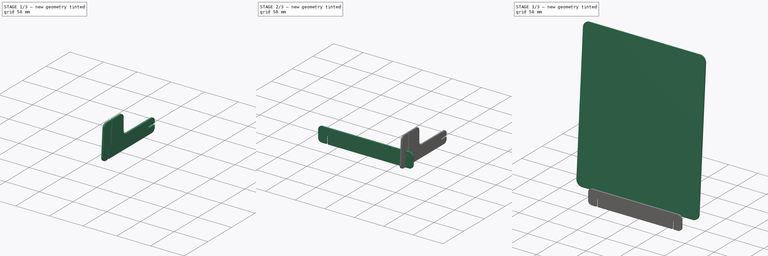
[diagram: build sequence overview — one tinted view per stage of 3, left to right]
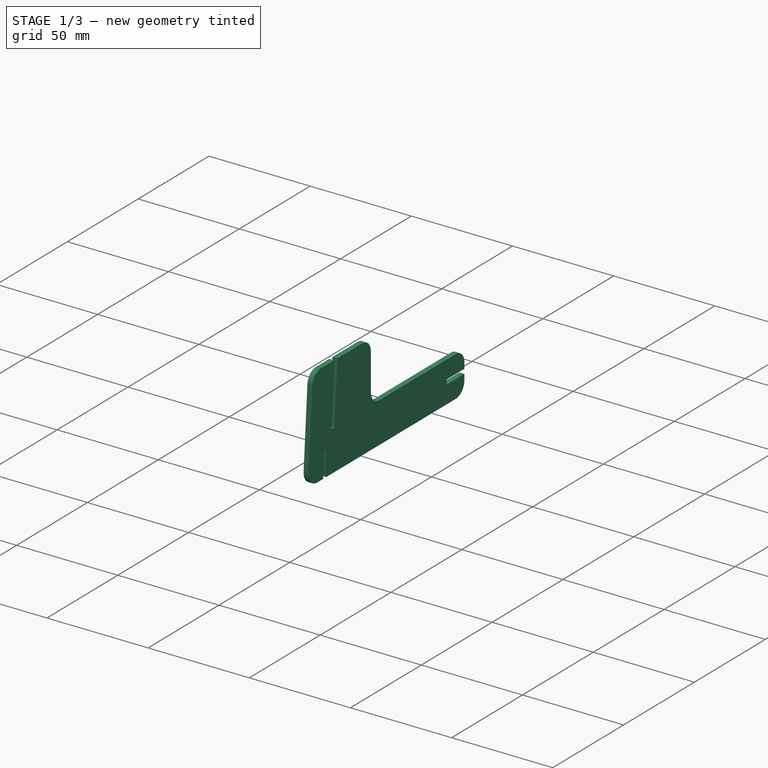
[diagram: stage 1 of 3 — iso view after this stage's code; geometry added in this stage tinted green]
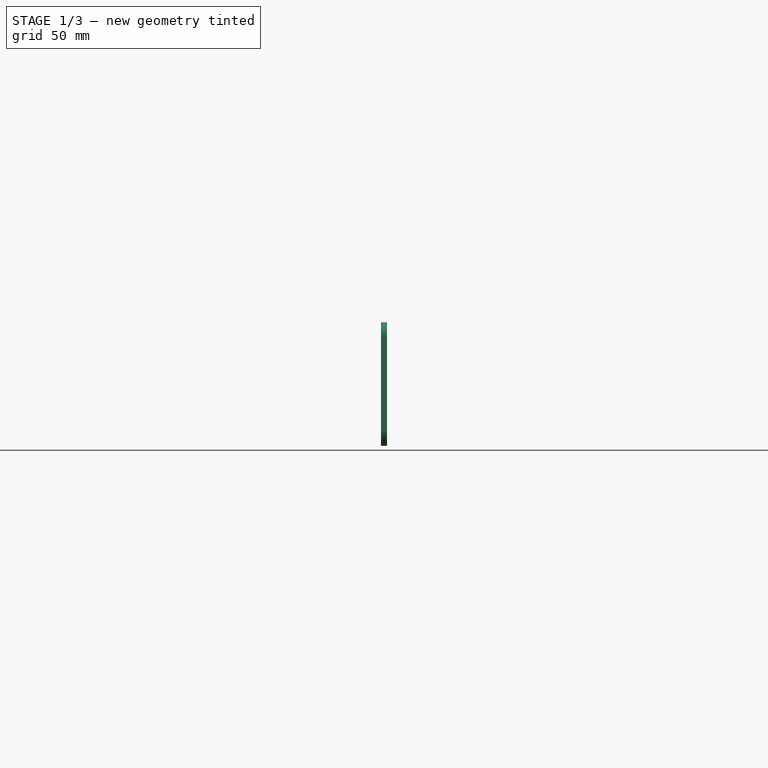
[diagram: stage 1 of 3 — front view after this stage's code; geometry added in this stage tinted green]
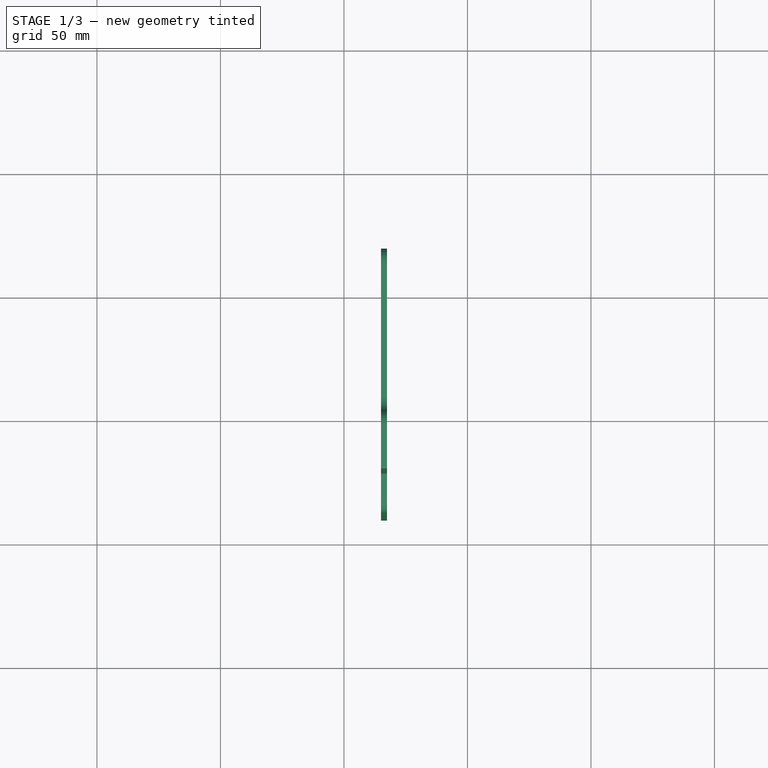
[diagram: stage 1 of 3 — top view after this stage's code; geometry added in this stage tinted green]
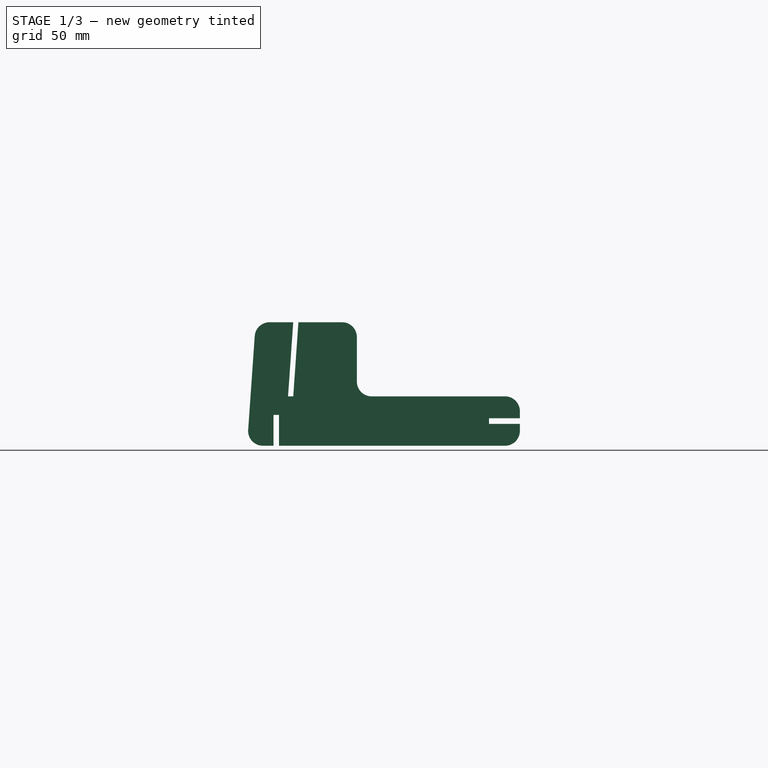
[diagram: stage 1 of 3 — right view after this stage's code; geometry added in this stage tinted green]
FCSTD DOCUMENT  (FreeCAD 1.0R39319 (Git))
Label: clock_face_v2
License: CERN Open Hardware Licence permissive
LicenseURL: https://cern-ohl.web.cern.ch/
objects: PartDesign::Body×5, Sketcher::SketchObject×4, PartDesign::Pad×3, PartDesign::SubShapeBinder×3, PartDesign::FeatureBase×2, PartDesign::Plane×1, App::VarSet×1
note: 30 computed .brp shape members not serialized (recipe doc carries the construction recipe); baked Part::Feature solids carry a one-line shape summary decoded from their .brp

FEATURE [PartDesign::Body] Body015
  AllowCompound = false
  Group = -> [Clone]
  Origin = -> Origin015
  Placement = pos=(0,49.75,19) rot=(1,0,0;1.5708rad)
  Tip = -> Clone
FEATURE [PartDesign::Pad] Pad010
  Direction = (1,0,0)
  Length = 2.45
  Length2 = 10
  Placement = pos=(0,0,0) rot=(1,1,1;2.0944rad)
  Profile = -> Sketch010
  ReferenceAxis = -> Sketch010 [N_Axis]
  Refine = true
  Suppressed = false
  Type = 0
  expr: Length = VarSet.veneer_thickness
FEATURE [PartDesign::Body] Body010
  AllowCompound = false
  Group = -> [Sketch010,Pad010]
  Origin = -> Origin010
  Tip = -> Pad010
FEATURE [PartDesign::FeatureBase] Clone003
  BaseFeature = -> Body010
  Suppressed = false
FEATURE [PartDesign::Body] Body011
  AllowCompound = false
  Group = -> [Clone003]
  Origin = -> Origin011
  Placement = pos=(-130,0,0) rot=(0,0,1;0rad)
  Tip = -> Clone003
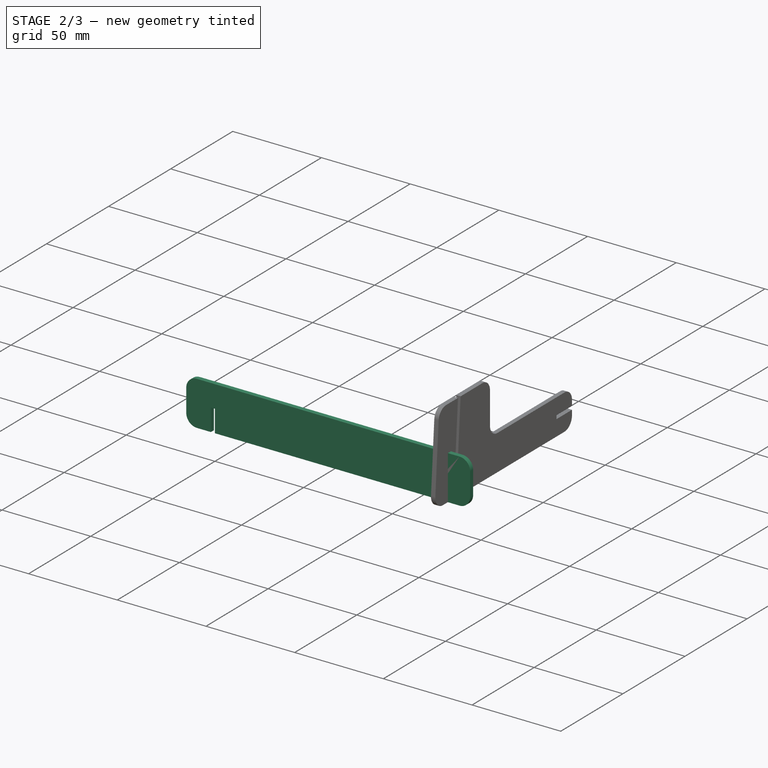
[diagram: stage 2 of 3 — iso view after this stage's code; geometry added in this stage tinted green]
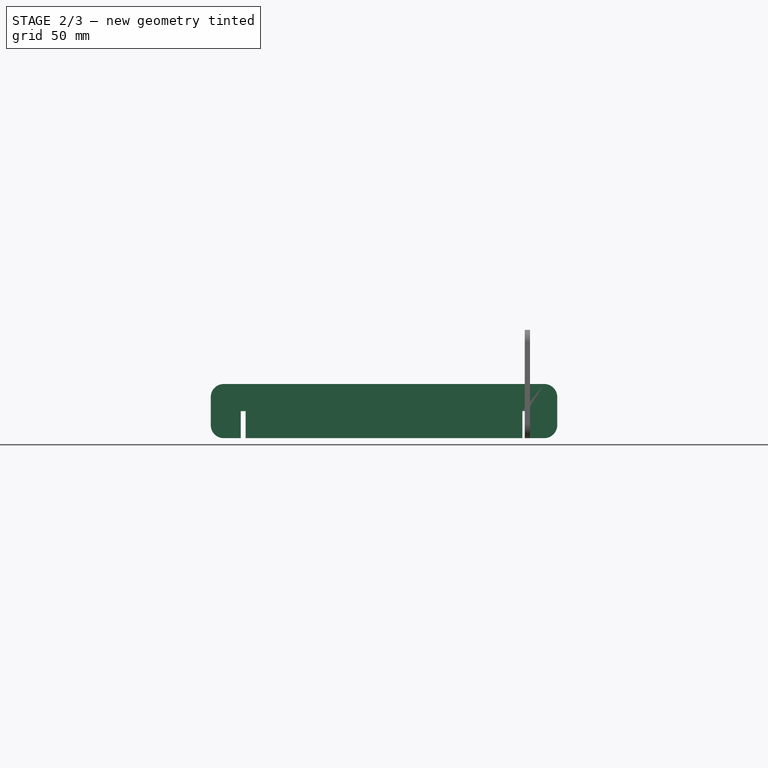
[diagram: stage 2 of 3 — front view after this stage's code; geometry added in this stage tinted green]
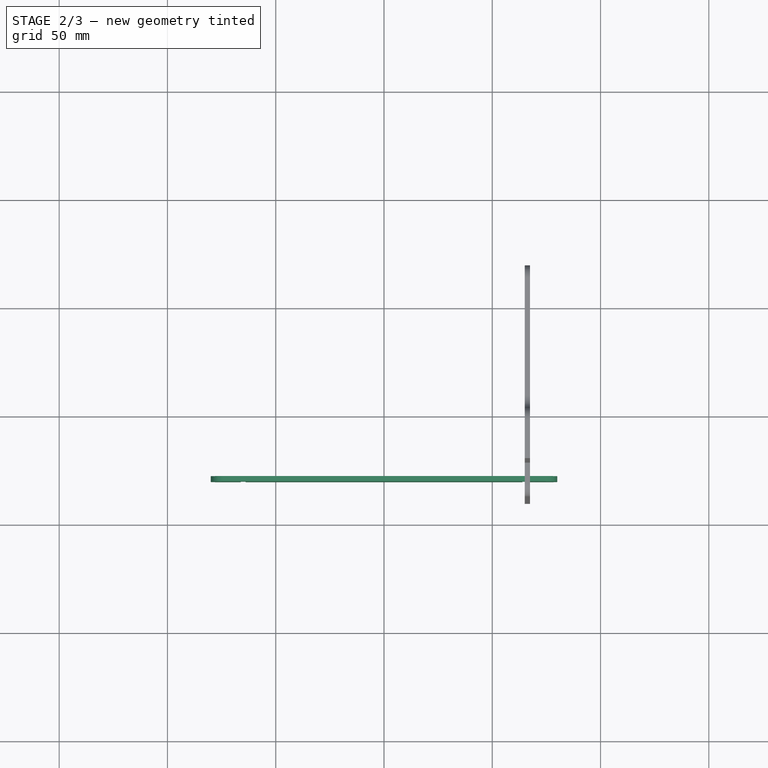
[diagram: stage 2 of 3 — top view after this stage's code; geometry added in this stage tinted green]
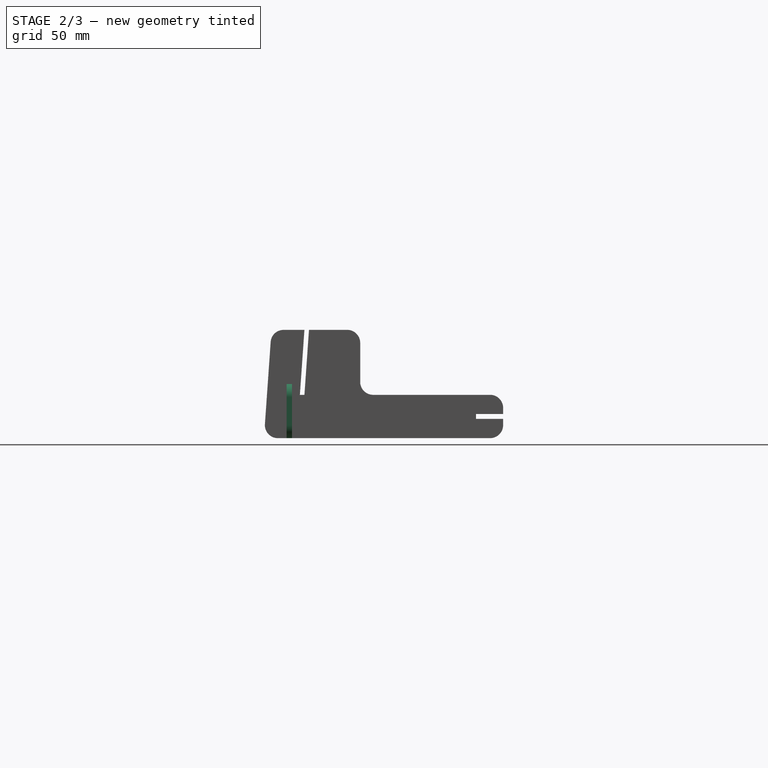
[diagram: stage 2 of 3 — right view after this stage's code; geometry added in this stage tinted green]
FEATURE [Sketcher::SketchObject] Sketch001
  ArcFitTolerance = 1e-06
  AttachmentSupport = -> [Pad]
  FullyConstrained = true
  MakeInternals = false
  MapMode = 5
  Placement = pos=(0,-23.9951,0.139513) rot=(1,0,0;1.50098rad)
  sketch-geometry (13):
    g0: Circle CenterX=0 CenterY=125 CenterZ=0 NormalX=0 NormalY=0 NormalZ=-1 AngleXU=0 Radius=0.2
    g1: ArcOfCircle CenterX=0 CenterY=125 CenterZ=0 NormalX=0 NormalY=0 NormalZ=1 AngleXU=0 Radius=5 StartAngle=0.174533 EndAngle=1.5708
    g2: ArcOfCircle CenterX=0 CenterY=125 CenterZ=0 NormalX=0 NormalY=0 NormalZ=1 AngleXU=0 Radius=5 StartAngle=1.74533 EndAngle=3.14159
    g3: ArcOfCircle CenterX=0 CenterY=125 CenterZ=0 NormalX=0 NormalY=0 NormalZ=1 AngleXU=0 Radius=5 StartAngle=3.31613 EndAngle=4.71239
    g4: ArcOfCircle CenterX=0 CenterY=125 CenterZ=0 NormalX=0 NormalY=0 NormalZ=1 AngleXU=0 Radius=5 StartAngle=4.88692 EndAngle=6.28319
    g5: LineSegment [constr] StartX=-9e-16 StartY=130 StartZ=0 EndX=-9e-16 EndY=120 EndZ=0
    g6: LineSegment [constr] StartX=-0.868241 StartY=129.924 StartZ=0 EndX=0.868241 EndY=120.076 EndZ=0
    g7: LineSegment [constr] StartX=-5 StartY=125 StartZ=0 EndX=5 EndY=125 EndZ=0
    g8: LineSegment [constr] StartX=-4.92404 StartY=124.132 StartZ=0 EndX=4.92404 EndY=125.868 EndZ=0
    g9: LineSegment [constr] StartX=-0.868241 StartY=129.924 StartZ=0 EndX=-9e-16 EndY=130 EndZ=0
    g10: LineSegment [constr] StartX=4.92404 StartY=125.868 StartZ=0 EndX=5 EndY=125 EndZ=0
    g11: LineSegment [constr] StartX=0.868241 StartY=120.076 StartZ=0 EndX=-9e-16 EndY=120 EndZ=0
    g12: LineSegment [constr] StartX=-4.92404 StartY=124.132 StartZ=0 EndX=-5 EndY=125 EndZ=0
  constraints (35):
    c: Equal(g4,g3)
    c: Equal(g3,g2)
    c: Equal(g2,g1)
    c: Radius(g1) = 5
    c: Coincident(g2,g1)
    c: Coincident(g2,g3)
    c: Coincident(g2,g4)
    c: Coincident(g2,g0)
    c: PointOnObject(g0,g-2)
    c: Coincident(g5,g1)
    c: Coincident(g5,g3)
    c: PointOnObject(g0,g5)
    c: Coincident(g6,g2)
    c: Coincident(g6,g4)
    c: PointOnObject(g0,g6)
    c: Coincident(g7,g2)
    c: Coincident(g7,g4)
    c: PointOnObject(g0,g7)
    c: Coincident(g8,g3)
    c: Coincident(g8,g1)
    c: PointOnObject(g0,g8)
    c: Diameter(g0) = 0.4
    c: Vertical(g5)
    c: Horizontal(g7)
    c: Coincident(g9,g2)
    c: Coincident(g9,g1)
    c: Coincident(g10,g1)
    c: Coincident(g10,g4)
    c: Coincident(g11,g4)
    c: Coincident(g11,g3)
    c: Coincident(g12,g3)
    c: Coincident(g12,g2)
    c: Equal(g9,g10)
    c: Angle(g5,g6) = 0.174533
    c: DistanceY(g-1,g0) = 125
FEATURE [App::VarSet] VarSet
  cardboard_thickness = 2.1
  laser_kerf = 0.2
  veneer_thickness = 2.45
FEATURE [Sketcher::SketchObject] Sketch010
  ArcFitTolerance = 1e-06
  AttachmentOffset = pos=(0,0,65) rot=(0,0,1;0rad)
  AttachmentSupport = -> [YZ_Plane010]
  FullyConstrained = true
  MakeInternals = false
  MapMode = 5
  Placement = pos=(65,0,0) rot=(0.57735,0.57735,0.57735;2.0944rad)
  expr: Constraints[11] = VarSet.veneer_thickness - VarSet.laser_kerf
  expr: Constraints[1] = VarSet.cardboard_thickness
  sketch-geometry (24):
    g0: LineSegment StartX=-19.9022 StartY=30 StartZ=0 EndX=-22 EndY=0 EndZ=0
    g1: LineSegment StartX=-22 StartY=0 StartZ=0 EndX=-24.1051 EndY=0 EndZ=0
    g2: LineSegment StartX=-24.1051 StartY=0 StartZ=0 EndX=-22.0073 EndY=30 EndZ=0
    g3: LineSegment StartX=-27.75 StartY=-7.5 StartZ=0 EndX=-27.75 EndY=-20 EndZ=0
    g4: LineSegment StartX=-30 StartY=-20 StartZ=0 EndX=-30 EndY=-7.5 EndZ=0
    g5: LineSegment StartX=-30 StartY=-7.5 StartZ=0 EndX=-27.75 EndY=-7.5 EndZ=0
    g6: LineSegment StartX=-37.5928 StartY=24.4185 StartZ=0 EndX=-40.25 EndY=-13.5815 EndZ=0
    g7: LineSegment StartX=-34.2646 StartY=-20 StartZ=0 EndX=-30 EndY=-20 EndZ=0
    g8: ArcOfCircle CenterX=-31.6074 CenterY=24 CenterZ=0 NormalX=0 NormalY=0 NormalZ=1 AngleXU=0 Radius=6 StartAngle=1.5708 EndAngle=3.07178
    g9: ArcOfCircle CenterX=-34.2646 CenterY=-14 CenterZ=0 NormalX=0 NormalY=0 NormalZ=1 AngleXU=0 Radius=6 StartAngle=3.07178 EndAngle=4.71239
    g10: ArcOfCircle CenterX=63.75 CenterY=-14 CenterZ=0 NormalX=0 NormalY=0 NormalZ=1 AngleXU=0 Radius=6 StartAngle=4.71239 EndAngle=6.28319
    g11: ArcOfCircle CenterX=63.75 CenterY=-6 CenterZ=0 NormalX=0 NormalY=0 NormalZ=1 AngleXU=0 Radius=6 StartAngle=1e-16 EndAngle=1.5708
    g12: LineSegment StartX=-22.0073 StartY=30 StartZ=0 EndX=-31.6074 EndY=30 EndZ=0
    g13: LineSegment StartX=-27.75 StartY=-20 StartZ=0 EndX=63.75 EndY=-20 EndZ=0
    g14: LineSegment StartX=63.75 StartY=0 StartZ=0 EndX=9.75 EndY=0 EndZ=0
    g15: ArcOfCircle CenterX=9.75 CenterY=6 CenterZ=0 NormalX=0 NormalY=0 NormalZ=1 AngleXU=0 Radius=6 StartAngle=3.14159 EndAngle=4.71239
    g16: LineSegment StartX=-2.25 StartY=30 StartZ=0 EndX=-19.9022 EndY=30 EndZ=0
    g17: ArcOfCircle CenterX=-2.25 CenterY=24 CenterZ=0 NormalX=0 NormalY=0 NormalZ=1 AngleXU=0 Radius=6 StartAngle=0 EndAngle=1.5708
    g18: LineSegment StartX=3.75 StartY=24 StartZ=0 EndX=3.75 EndY=6 EndZ=0
    g19: LineSegment StartX=69.75 StartY=-6 StartZ=0 EndX=69.75 EndY=-8.875 EndZ=0
    g20: LineSegment StartX=69.75 StartY=-8.875 StartZ=0 EndX=57.25 EndY=-8.875 EndZ=0
    g21: LineSegment StartX=57.25 StartY=-8.875 StartZ=0 EndX=57.25 EndY=-11.125 EndZ=0
    g22: LineSegment StartX=57.25 StartY=-11.125 StartZ=0 EndX=69.75 EndY=-11.125 EndZ=0
    g23: LineSegment StartX=69.75 StartY=-11.125 StartZ=0 EndX=69.75 EndY=-14 EndZ=0
  constraints (69):
    c: Parallel(g2,g0)
    c: Distance(g0,g2) = 2.1
    c: Coincident(g1,g2)
    c: Equal(g2,g0)
    c: Horizontal(g1)
    c: Angle(g-1,g0) = 1.50098
    c: Coincident(g4,g5)
    c: Coincident(g5,g3)
    c: Vertical(g3)
    c: Vertical(g4)
    c: Horizontal(g5)
    c: Distance(g5,g5) = 2.25
    c: DistanceY(g3,g3) = 12.5
    c: Equal(g3,g4)
    c: Coincident(g0,g1)
    c: Distance(g0,g-2) = 22
    c: Distance(g4,g-2) = 30
    c: Tangent(g6,g8) = -1.5708
    c: Tangent(g6,g9) = -1.5708
    c: Tangent(g7,g9) = -1.5708
    c: Horizontal(g7)
    c: Equal(g8,g9)
    c: Equal(g9,g10)
    c: Equal(g10,g11)
    c: Radius(g9) = 6
    c: Distance(g12,g-1) = 30
    c: PointOnObject(g2,g12)
    c: PointOnObject(g12,g2)
    c: Horizontal(g12)
    c: Tangent(g8,g12) = -1.5708
    c: PointOnObject(g1,g-1)
    c: PointOnObject(g4,g13)
    c: Tangent(g13,g10) = -1.5708
    c: Horizontal(g13)
    c: DistanceX(g6,g3) = 12.5
    c: Parallel(g6,g2)
    c: DistanceY(g7,g8) = 50
    c: PointOnObject(g11,g-1)
    c: PointOnObject(g14,g-1)
    c: Tangent(g14,g15) = 1.5708
    c: Coincident(g16,g0)
    c: Horizontal(g16)
    c: Equal(g15,g8)
    c: Tangent(g11,g14) = -1.5708
    c: PointOnObject(g16,g17)
    c: Equal(g17,g8)
    c: Tangent(g17,g16) = -1.5708
    c: DistanceX(g6,g10) = 110
    c: Vertical(g18)
    c: Tangent(g18,g15) = -1.5708
    c: Tangent(g18,g17) = 1.5708
    c: DistanceX(g6,g15) = 44
    c: PointOnObject(g13,g3)
    c: Coincident(g4,g7)
    c: Tangent(g11,g19) = 1.5708
    c: Coincident(g19,g20)
    c: Horizontal(g20)
    c: Coincident(g20,g21)
    c: Vertical(g21)
    c: Coincident(g21,g22)
    c: Horizontal(g22)
    c: Coincident(g22,g23)
    c: Vertical(g23)
    c: Equal(g23,g19)
    c: Equal(g20,g3)
    c: Equal(g5,g21)
    c: Vertical(g19)
    c: Equal(g22,g20)
    c: Tangent(g23,g10) = 1.5708
FEATURE [PartDesign::SubShapeBinder] Binder
  BindCopyOnChange = 0
  BindMode = 0
  ClaimChildren = false
  Context = -> Body [Binder.]
  Fuse = false
  MakeFace = true
  OffsetFill = false
  OffsetIntersection = false
  OffsetJoinType = 0
  OffsetOpenResult = false
  PartialLoad = false
  Refine = true
  Relative = true
  Support = -> [Body010]
  _Version = 2
FEATURE [PartDesign::Body] Body
  AllowCompound = false
  Group = -> [Sketch,Sketch001,Pad,DatumPlane,Binder]
  Origin = -> Origin
  Tip = -> Pad
FEATURE [PartDesign::SubShapeBinder] Binder001
  BindCopyOnChange = 0
  BindMode = 0
  ClaimChildren = false
  Context = -> Body014 [Binder001.]
  Fuse = false
  MakeFace = true
  OffsetFill = false
  OffsetIntersection = false
  OffsetJoinType = 0
  OffsetOpenResult = false
  PartialLoad = false
  Refine = true
  Relative = true
  Support = -> [Body010]
  _Version = 2
FEATURE [Sketcher::SketchObject] Sketch012
  ArcFitTolerance = 1e-06
  AttachmentSupport = -> [Binder001]
  FullyConstrained = true
  MakeInternals = false
  MapMode = 5
  Placement = pos=(-6.2e-15,-27.75,3.1e-15) rot=(1,0,0;1.5708rad)
  expr: Constraints[51] = VarSet.veneer_thickness - VarSet.laser_kerf
  sketch-geometry (22):
    g0: LineSegment StartX=-66.125 StartY=-20 StartZ=0 EndX=-66.125 EndY=-7.5 EndZ=0
    g1: LineSegment StartX=-66.125 StartY=-7.5 StartZ=0 EndX=-63.875 EndY=-7.5 EndZ=0
    g2: LineSegment StartX=-63.875 StartY=-7.5 StartZ=0 EndX=-63.875 EndY=-20 EndZ=0
    g3: LineSegment StartX=-63.875 StartY=-20 StartZ=0 EndX=63.875 EndY=-20 EndZ=0
    g4: LineSegment StartX=63.875 StartY=-20 StartZ=0 EndX=63.875 EndY=-7.5 EndZ=0
    g5: LineSegment StartX=63.875 StartY=-7.5 StartZ=0 EndX=66.125 EndY=-7.5 EndZ=0
    g6: LineSegment StartX=66.125 StartY=-7.5 StartZ=0 EndX=66.125 EndY=-20 EndZ=0
    g7: LineSegment StartX=66.125 StartY=-20 StartZ=0 EndX=74 EndY=-20 EndZ=0
    g8: LineSegment StartX=80 StartY=-14 StartZ=0 EndX=80 EndY=-1 EndZ=0
    g9: LineSegment StartX=74 StartY=5 StartZ=0 EndX=-74 EndY=5 EndZ=0
    g10: LineSegment StartX=-80 StartY=-1 StartZ=0 EndX=-80 EndY=-14 EndZ=0
    g11: LineSegment StartX=-74 StartY=-20 StartZ=0 EndX=-66.125 EndY=-20 EndZ=0
    g12: ArcOfCircle CenterX=-74 CenterY=-1 CenterZ=0 NormalX=0 NormalY=0 NormalZ=1 AngleXU=0 Radius=6 StartAngle=1.5708 EndAngle=3.14159
    g13: GeomPoint [constr] X=-80 Y=5 Z=0
    g14: ArcOfCircle CenterX=-74 CenterY=-14 CenterZ=0 NormalX=0 NormalY=0 NormalZ=1 AngleXU=0 Radius=6 StartAngle=3.14159 EndAngle=4.71239
    g15: GeomPoint [constr] X=-80 Y=-20 Z=0
    g16: ArcOfCircle CenterX=74 CenterY=-14 CenterZ=0 NormalX=0 NormalY=0 NormalZ=1 AngleXU=0 Radius=6 StartAngle=4.71239 EndAngle=6.28319
    g17: GeomPoint [constr] X=80 Y=-20 Z=0
    g18: ArcOfCircle CenterX=74 CenterY=-1 CenterZ=0 NormalX=0 NormalY=0 NormalZ=1 AngleXU=0 Radius=6 StartAngle=0 EndAngle=1.5708
    g19: GeomPoint [constr] X=80 Y=5 Z=0
    g20: LineSegment [constr] StartX=63.875 StartY=-13.75 StartZ=0 EndX=66.125 EndY=-13.75 EndZ=0
    g21: LineSegment [constr] StartX=65 StartY=-13.75 StartZ=0 EndX=65 EndY=-7.5 EndZ=0
  constraints (55):
    c: Vertical(g0)
    c: Coincident(g0,g1)
    c: Horizontal(g1)
    c: Coincident(g1,g2)
    c: Vertical(g2)
    c: Coincident(g2,g3)
    c: Vertical(g4)
    c: Coincident(g4,g5)
    c: Coincident(g6,g7)
    c: Horizontal(g7)
    c: Horizontal(g9)
    c: Vertical(g10)
    c: Coincident(g11,g0)
    c: Horizontal(g11)
    c: Horizontal(g5)
    c: Vertical(g8)
    c: Equal(g0,g2)
    c: Equal(g2,g4)
    c: Equal(g4,g6)
    c: Equal(g1,g5)
    c: Symmetric(g2,g3,g-2)
    c: DistanceX(g13,g19) = 160
    c: DistanceY(g15,g13) = 25
    c: PointOnObject(g13,g9)
    c: PointOnObject(g13,g10)
    c: Tangent(g9,g12) = -1.5708
    c: Tangent(g10,g12) = -1.5708
    c: PointOnObject(g15,g10)
    c: PointOnObject(g15,g11)
    c: Tangent(g10,g14) = -1.5708
    c: Tangent(g11,g14) = -1.5708
    c: PointOnObject(g17,g8)
    c: PointOnObject(g17,g7)
    c: Tangent(g8,g16) = -1.5708
    c: Tangent(g7,g16) = -1.5708
    c: PointOnObject(g19,g9)
    c: PointOnObject(g19,g8)
    c: Tangent(g9,g18) = -1.5708
    c: Tangent(g8,g18) = -1.5708
    c: Equal(g18,g16)
    c: Equal(g16,g14)
    c: Equal(g14,g12)
    c: Radius(g12) = 6
    c: Equal(g11,g7)
    c: Coincident(g5,g6)
    c: Coincident(g3,g4)
    c: PointOnObject(g0,g-4)
    c: Symmetric(g4,g4,g20)
    c: Symmetric(g6,g6,g20)
    c: Symmetric(g20,g20,g21)
    c: Symmetric(g5,g5,g21)
    c: DistanceX(g20,g20) = 2.25
    c: PointOnObject(g21,g-6)
    c: Symmetric(g-6,g-6,g21)
    c: Distance(g14,g0) = 7.875
FEATURE [PartDesign::Pad] Pad009
  Direction = (0,-1,2e-16)
  Length = 2.45
  Length2 = 10
  Profile = -> Sketch012
  ReferenceAxis = -> Sketch012 [N_Axis]
  Refine = true
  Suppressed = false
  Type = 0
  expr: Length = VarSet.veneer_thickness
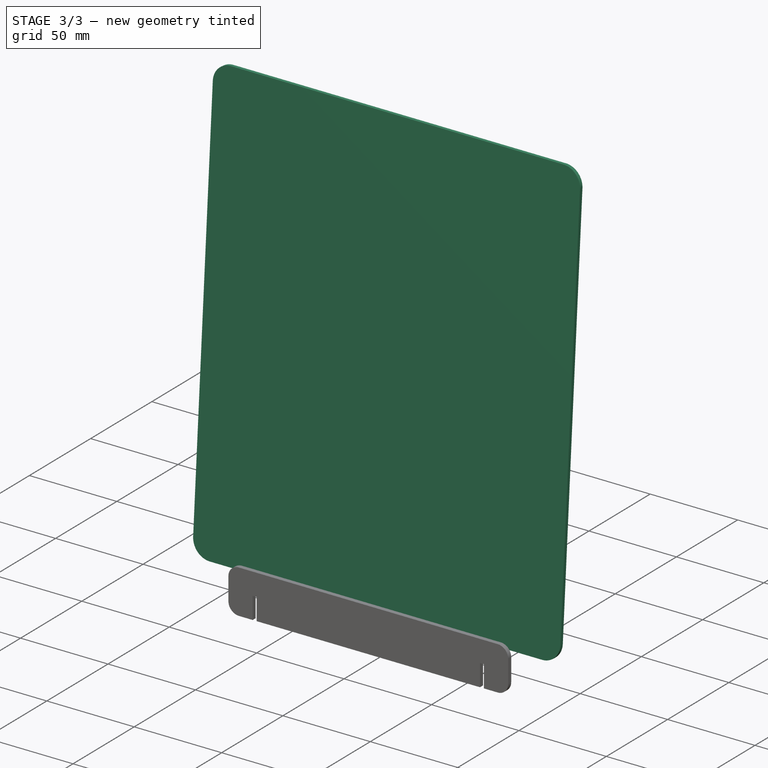
[diagram: stage 3 of 3 — iso view after this stage's code; geometry added in this stage tinted green]
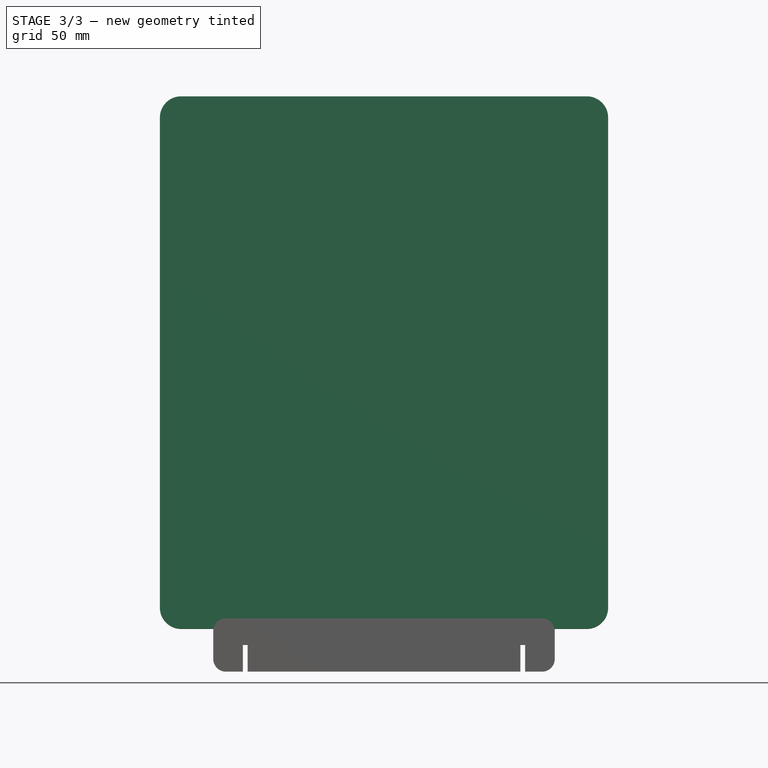
[diagram: stage 3 of 3 — front view after this stage's code; geometry added in this stage tinted green]
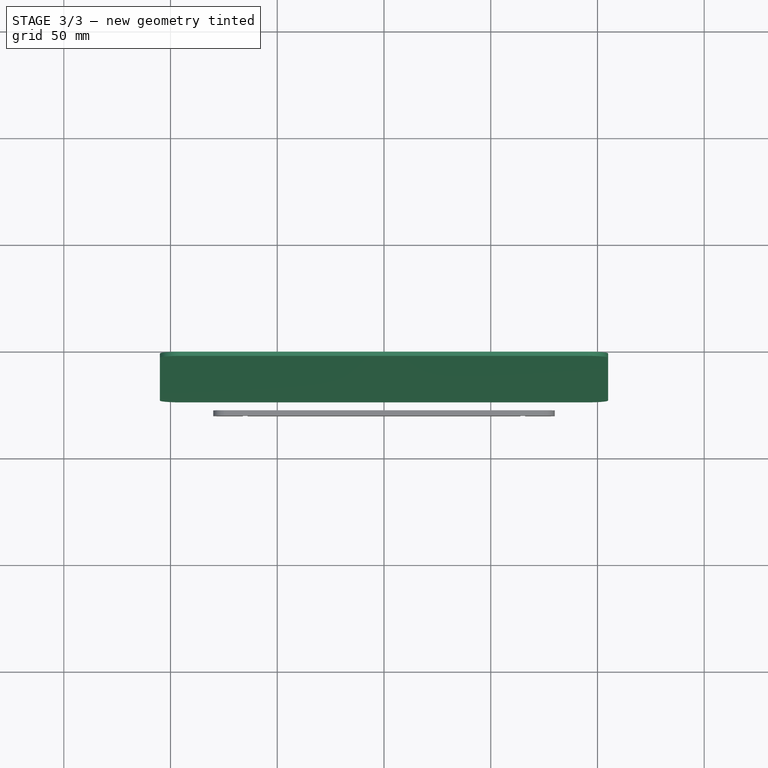
[diagram: stage 3 of 3 — top view after this stage's code; geometry added in this stage tinted green]
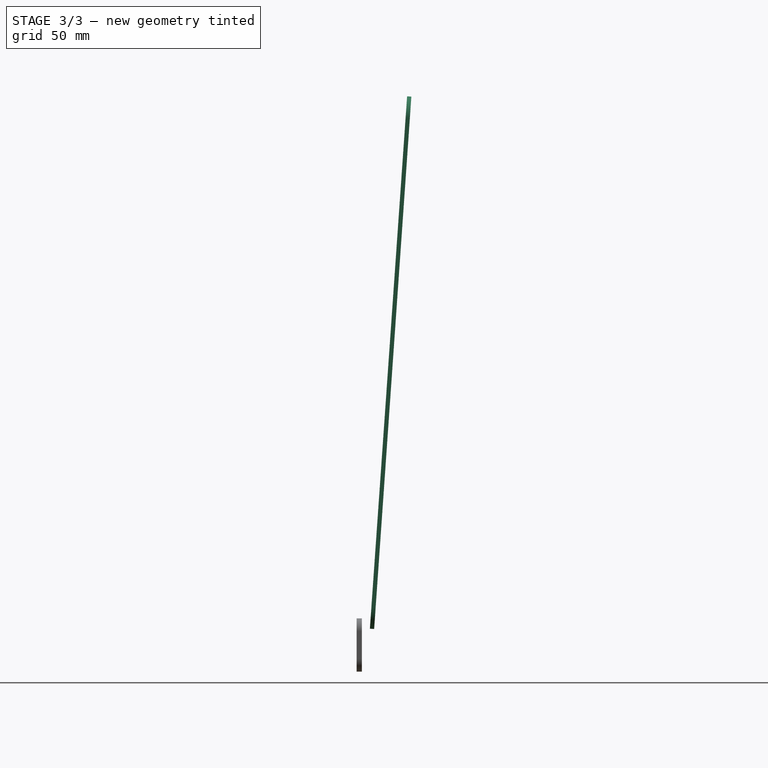
[diagram: stage 3 of 3 — right view after this stage's code; geometry added in this stage tinted green]
FEATURE [PartDesign::Plane] DatumPlane
  AttachmentOffset = pos=(0,0,22) rot=(-1,0,0;0.069813rad)
  AttachmentSupport = -> [XZ_Plane]
  Length = 258.267
  MapMode = 5
  Placement = pos=(0,-22,4.9e-15) rot=(1,0,0;1.50098rad)
  ResizeMode = 0
  Width = 325.617
FEATURE [Sketcher::SketchObject] Sketch
  ArcFitTolerance = 1e-06
  AttachmentSupport = -> [DatumPlane]
  FullyConstrained = true
  MakeInternals = false
  MapMode = 5
  Placement = pos=(0,-22,4.7e-15) rot=(1,0,0;1.50098rad)
  sketch-geometry (8):
    g0: LineSegment StartX=-95 StartY=0 StartZ=0 EndX=95 EndY=0 EndZ=0
    g1: LineSegment StartX=105 StartY=10 StartZ=0 EndX=105 EndY=240 EndZ=0
    g2: LineSegment StartX=95 StartY=250 StartZ=0 EndX=-95 EndY=250 EndZ=0
    g3: LineSegment StartX=-105 StartY=240 StartZ=0 EndX=-105 EndY=10 EndZ=0
    g4: ArcOfCircle CenterX=-95 CenterY=240 CenterZ=0 NormalX=0 NormalY=0 NormalZ=1 AngleXU=0 Radius=10 StartAngle=1.5708 EndAngle=3.14159
    g5: ArcOfCircle CenterX=95 CenterY=240 CenterZ=0 NormalX=0 NormalY=0 NormalZ=1 AngleXU=0 Radius=10 StartAngle=1.2e-15 EndAngle=1.5708
    g6: ArcOfCircle CenterX=95 CenterY=10 CenterZ=0 NormalX=0 NormalY=0 NormalZ=1 AngleXU=0 Radius=10 StartAngle=4.71239 EndAngle=6.28319
    g7: ArcOfCircle CenterX=-95 CenterY=10 CenterZ=0 NormalX=0 NormalY=0 NormalZ=1 AngleXU=0 Radius=10 StartAngle=3.14159 EndAngle=4.71239
  constraints (19):
    c: Horizontal(g0)
    c: Vertical(g1)
    c: Horizontal(g2)
    c: Vertical(g3)
    c: Tangent(g2,g4) = -1.5708
    c: Tangent(g3,g4) = -1.5708
    c: Tangent(g2,g5) = -1.5708
    c: Tangent(g1,g5) = -1.5708
    c: Tangent(g1,g6) = -1.5708
    c: Tangent(g0,g6) = -1.5708
    c: Tangent(g0,g7) = -1.5708
    c: Tangent(g3,g7) = -1.5708
    c: Equal(g7,g6)
    c: Equal(g6,g5)
    c: Equal(g5,g4)
    c: Radius(g4) = 10
    c: DistanceX(g3,g1) = 210
    c: DistanceY(g0,g2) = 250
    c: Symmetric(g0,g0,g-1)
FEATURE [PartDesign::Pad] Pad
  Direction = (0,-0.997564,0.0697565)
  Length = 2
  Length2 = 10
  Placement = pos=(0,-22,4.9e-15) rot=(1,0,0;1.50098rad)
  Profile = -> Sketch
  ReferenceAxis = -> Sketch [N_Axis]
  Refine = true
  Suppressed = false
  Type = 0
FEATURE [PartDesign::SubShapeBinder] Binder002
  BindCopyOnChange = 0
  BindMode = 0
  ClaimChildren = false
  Context = -> Body014 [Binder002.]
  Fuse = false
  MakeFace = true
  OffsetFill = false
  OffsetIntersection = false
  OffsetJoinType = 0
  OffsetOpenResult = false
  PartialLoad = false
  Refine = true
  Relative = true
  Support = -> [Body011]
  _Version = 2
FEATURE [PartDesign::Body] Body014
  AllowCompound = false
  Group = -> [Sketch012,Pad009,Binder001,Binder002]
  Origin = -> Origin014
  Tip = -> Pad009
FEATURE [PartDesign::FeatureBase] Clone
  BaseFeature = -> Body014
  Suppressed = false
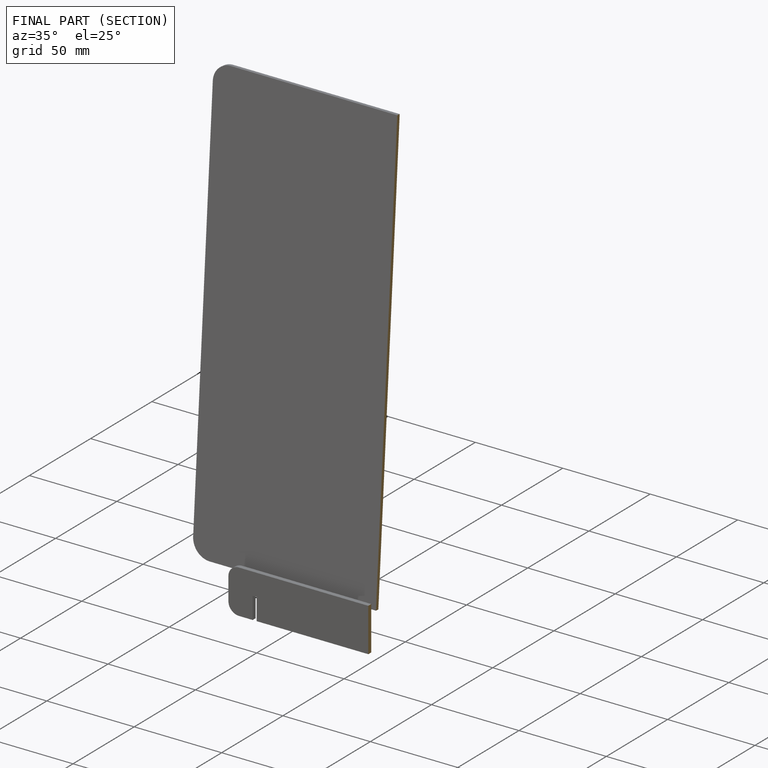
[diagram: finished part — half-section view (interior)]
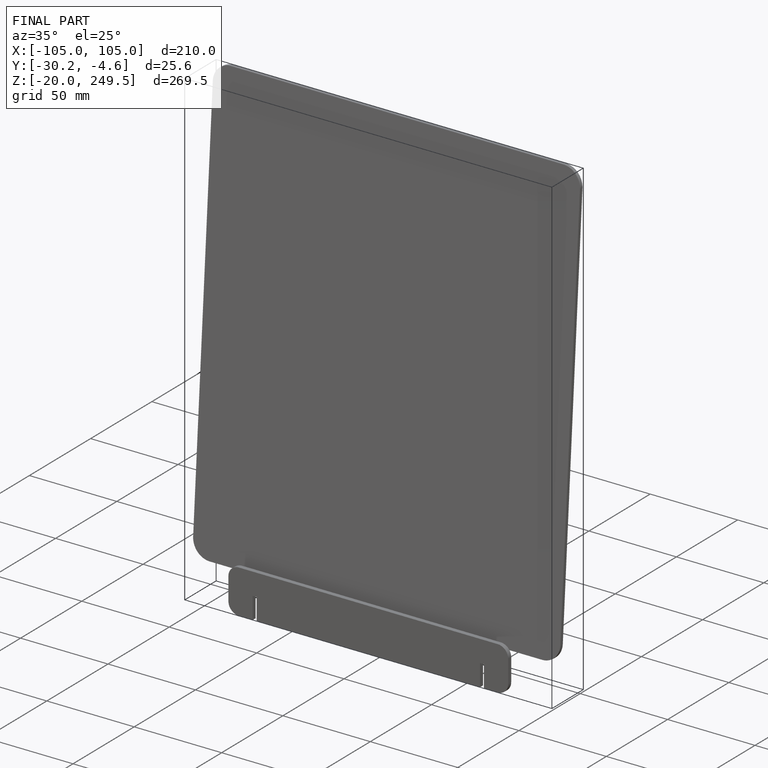
[diagram: finished part — iso view with bounding-box wireframe]
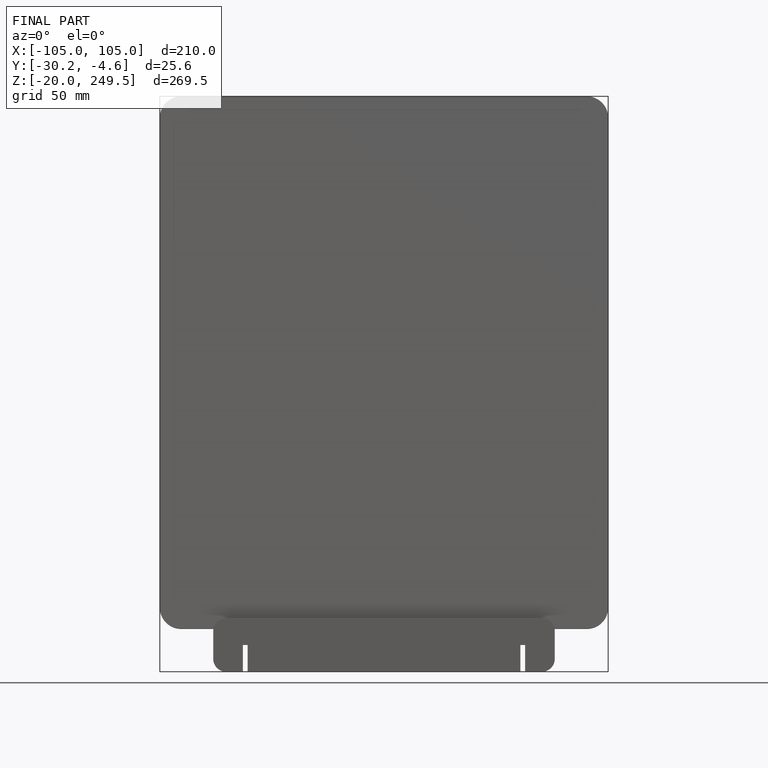
[diagram: finished part — front view with bounding-box wireframe]
